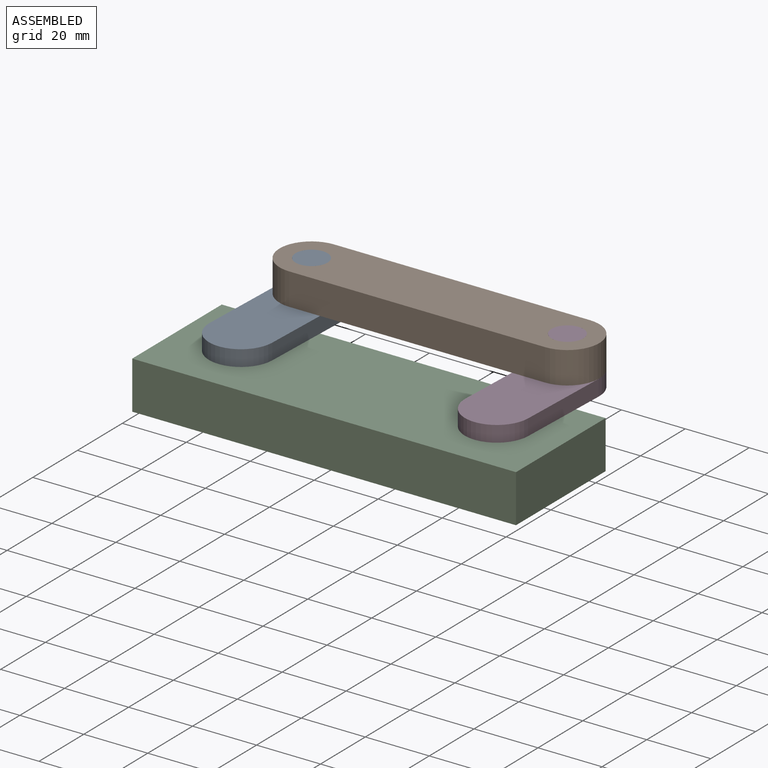
[diagram: assembled view]
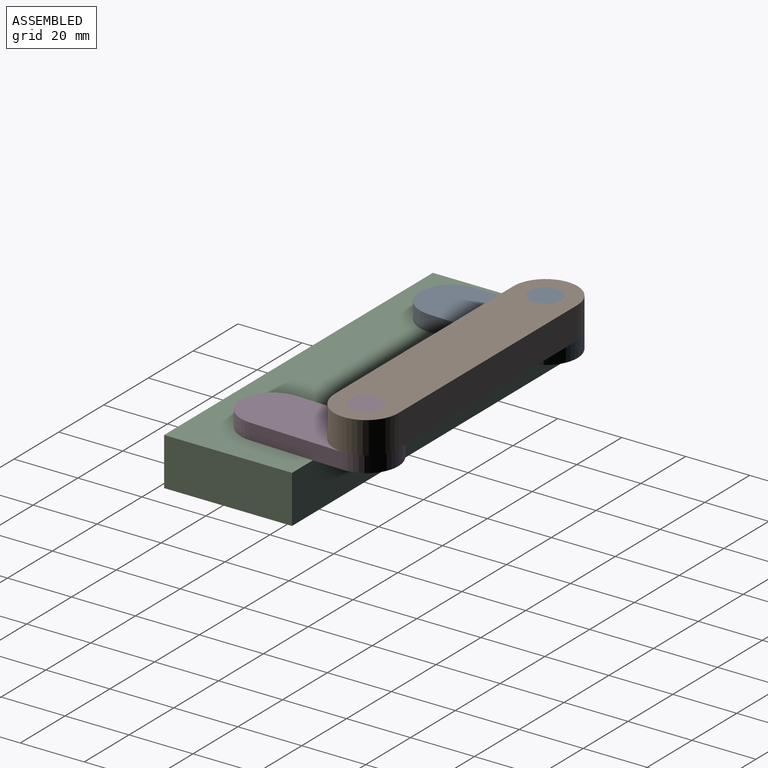
[diagram: assembled view, second angle]
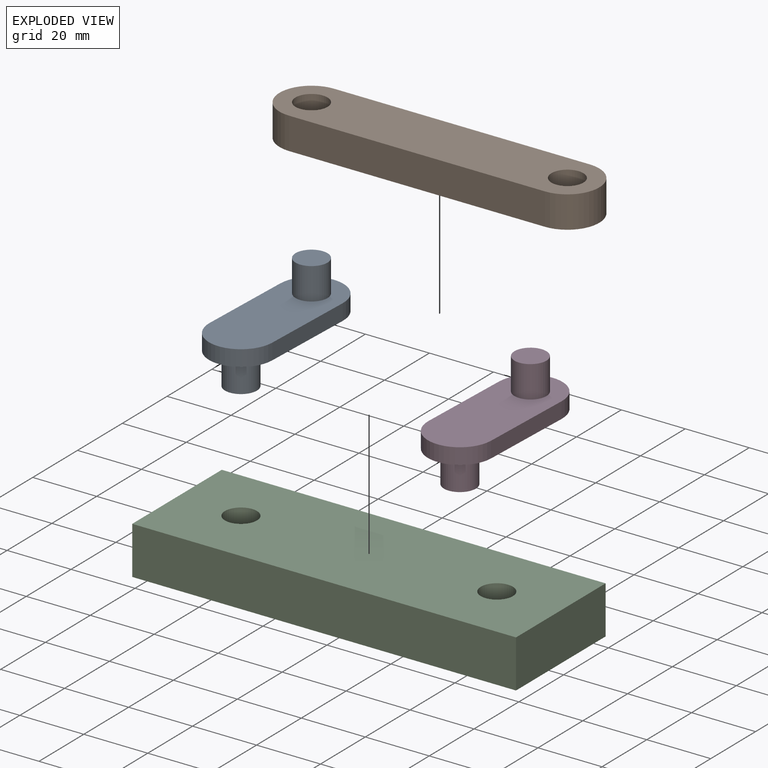
[diagram: exploded view]
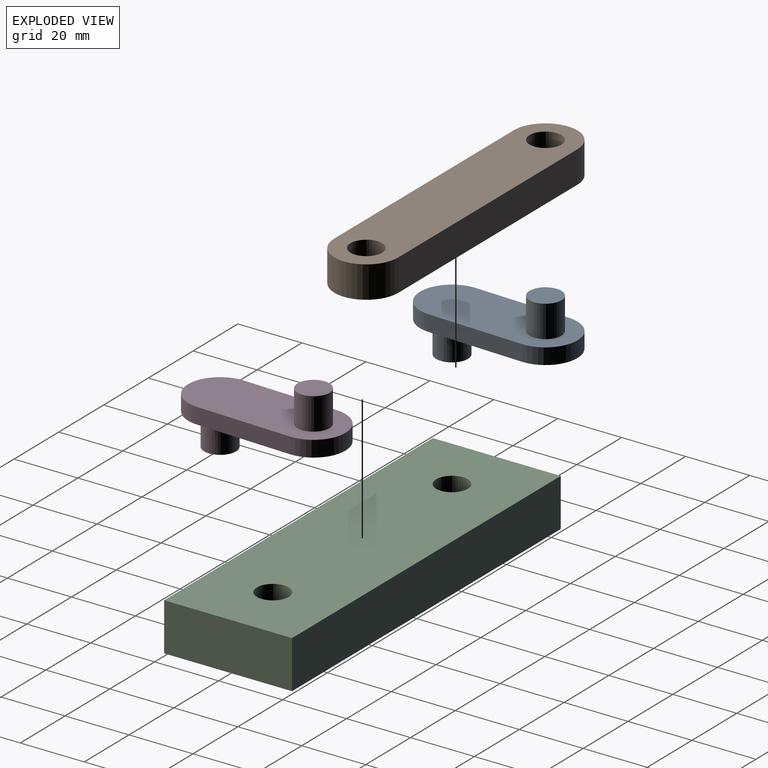
[diagram: exploded view, second angle]
ASSEMBLY  parts=4 mates=4
PART A: 10 faces, bbox 50x20x25 mm
  f0: cylinder r=10mm len=20mm, axis (0,0,-1), area 157.1mm2, adj f1,f3,f4,f5
  f1: plane 30x5mm, normal (0,-1,0), area 150mm2, adj f0,f2,f4,f5
  f2: cylinder r=10mm len=20mm, axis (0,0,-1), area 157.1mm2, adj f1,f3,f4,f5
  f3: plane 30x5mm, normal (0,1,0), area 150mm2, adj f0,f2,f4,f5
  f4: plane 50x20mm, normal (0,0,1), area 835.6mm2, adj f0,f1,f2,f3,f8
  f5: plane 50x20mm, normal (0,0,-1), area 835.6mm2, adj f0,f1,f2,f3,f6
  f6: cylinder r=5mm len=10mm, axis (0,0,1), area 314.2mm2, adj f5,f7
  f7: plane 10x10mm, normal (0,0,-1), area 78.5mm2, adj f6
  f8: cylinder r=5mm len=10mm, axis (0,0,-1), area 314.2mm2, adj f4,f9
  f9: plane 10x10mm, normal (0,0,1), area 78.5mm2, adj f8
PART B: 8 faces, bbox 100x20x10 mm
  f0: plane 80x10mm, normal (0,1,0), area 800mm2, adj f1,f3,f6,f7
  f1: cylinder r=10mm len=20mm, axis (0,0,-1), area 314.2mm2, adj f0,f2,f6,f7
  f2: plane 80x10mm, normal (0,-1,0), area 800mm2, adj f1,f3,f6,f7
  f3: cylinder r=10mm len=20mm, axis (0,0,-1), area 314.2mm2, adj f0,f2,f6,f7
  f4: cylinder r=5mm len=10mm, axis (0,0,-1), area 314.2mm2, adj f6,f7
  f5: cylinder r=5mm len=10mm, axis (0,0,-1), area 314.2mm2, adj f6,f7
  f6: plane 100x20mm, normal (0,0,1), area 1757.1mm2, adj f0,f1,f2,f3,f4,f5
  f7: plane 100x20mm, normal (0,0,-1), area 1757.1mm2, adj f0,f1,f2,f3,f4,f5
PART C: 8 faces, bbox 120x40x15 mm
  f0: plane 40x15mm, normal (-1,0,0), area 600mm2, adj f1,f5,f6,f7
  f1: plane 120x15mm, normal (0,-1,0), area 1800mm2, adj f0,f2,f6,f7
  f2: plane 40x15mm, normal (1,0,0), area 600mm2, adj f1,f5,f6,f7
  f3: cylinder r=5mm len=15mm, axis (0,0,-1), area 471.2mm2, adj f6,f7
  f4: cylinder r=5mm len=15mm, axis (0,0,-1), area 471.2mm2, adj f6,f7
  f5: plane 120x15mm, normal (0,1,0), area 1800mm2, adj f0,f2,f6,f7
  f6: plane 120x40mm, normal (0,0,1), area 4642.9mm2, adj f0,f1,f2,f3,f4,f5
  f7: plane 120x40mm, normal (0,0,-1), area 4642.9mm2, adj f0,f1,f2,f3,f4,f5
PART D: same geometry as A
PLACE A rot(axis=(0,0,1),88deg) t=(-23.29,17.02,11.59)mm
PLACE B rot(axis=(0,0,1),0deg) t=(-2.02,26.82,16.59)mm
PLACE C t=(-31.54,0.9,-3.41)mm fixed
PLACE D rot(axis=(0,0,1),88deg) t=(56.71,17.02,11.59)mm
MATE revolute D.f2 <-> B.f3  axis (0,0,1) through (39.09,31.56,26.59)mm
MATE revolute A.f0 <-> C.f3  axis (0,0,-1) through (-41.98,1.58,1.59)mm
MATE revolute D.f0 <-> C.f4  axis (0,0,1) through (38.02,1.58,1.59)mm
MATE revolute A.f2 <-> B.f1  axis (0,0,1) through (-40.91,31.56,26.59)mm
